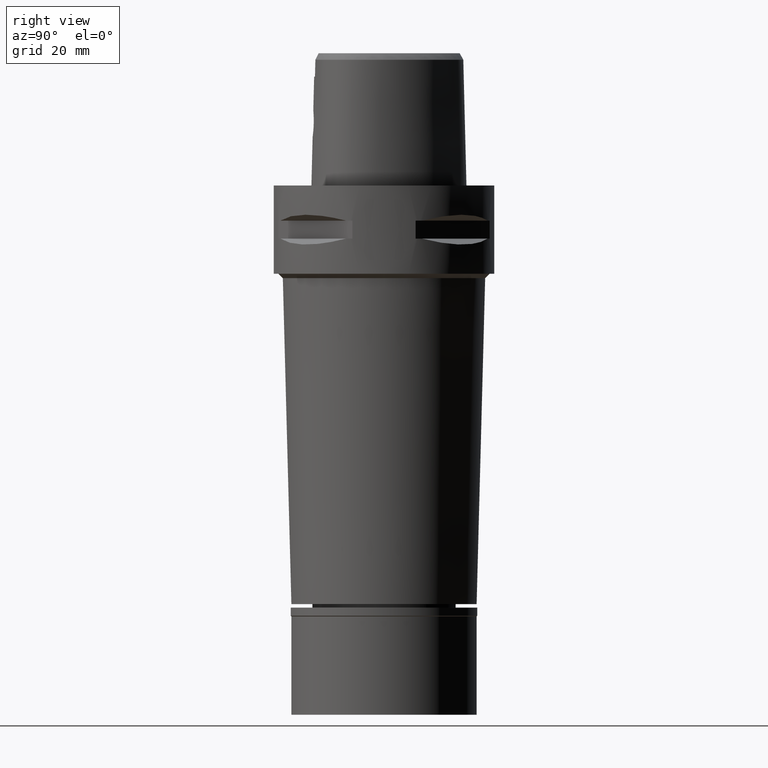
[diagram: clean part render]
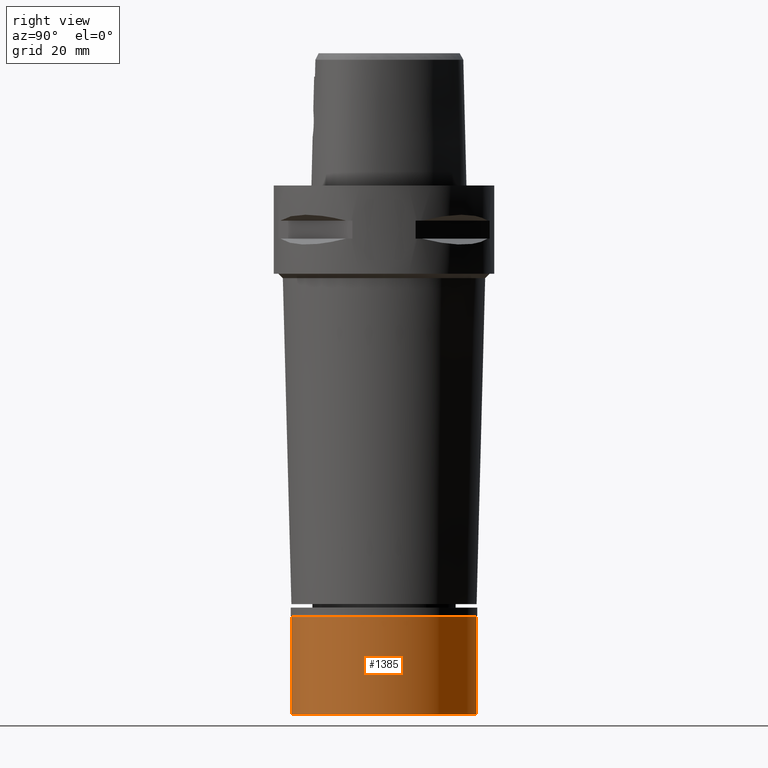
[diagram: same view with one face highlighted and labeled with its STEP entity id]
A machine part, right view. The second image highlights one B-rep face of the part: STEP entity #1385.
In plain terms, the highlighted cylindrical surface (partial cylindrical patch) has radius 21 mm, axis along (0, 0, -1).
Its self-contained STEP definition (entity closure, byte-faithful):
#637 = VERTEX_POINT ( 'NONE', #2983 ) ;
#659 = VERTEX_POINT ( 'NONE', #4084 ) ;
#748 = FACE_OUTER_BOUND ( 'NONE', #3502, .T. ) ;
#1007 = LINE ( 'NONE', #3986, #1406 ) ;
#1114 = CARTESIAN_POINT ( 'NONE',  ( 0.0000000000000000000, -21.00000000000000000, -2.000000000000000000 ) ) ;
#1198 = DIRECTION ( 'NONE',  ( 0.0000000000000000000, 0.0000000000000000000, 1.000000000000000000 ) ) ;
#1262 = AXIS2_PLACEMENT_3D ( 'NONE', #3374, #4065, #3744 ) ;
#1385 = ADVANCED_FACE ( 'NONE', ( #748 ), #2238, .T. ) ;
#1406 = VECTOR ( 'NONE', #3625, 1000.000000000000000 ) ;
#1466 = CIRCLE ( 'NONE', #2080, 21.00000000000000000 ) ;
#1506 = DIRECTION ( 'NONE',  ( 0.0000000000000000000, -1.000000000000000000, 0.0000000000000000000 ) ) ;
#1662 = ORIENTED_EDGE ( 'NONE', *, *, #3331, .T. ) ;
#1829 = CARTESIAN_POINT ( 'NONE',  ( 0.0000000000000000000, 0.0000000000000000000, 0.0000000000000000000 ) ) ;
#1842 = LINE ( 'NONE', #1114, #2359 ) ;
#2031 = ORIENTED_EDGE ( 'NONE', *, *, #2575, .T. ) ;
#2080 = AXIS2_PLACEMENT_3D ( 'NONE', #2693, #1198, #3117 ) ;
#2163 = ORIENTED_EDGE ( 'NONE', *, *, #3332, .T. ) ;
#2238 = CYLINDRICAL_SURFACE ( 'NONE', #3018, 21.00000000000000000 ) ;
#2359 = VECTOR ( 'NONE', #4122, 1000.000000000000000 ) ;
#2575 = EDGE_CURVE ( 'NONE', #637, #3141, #1466, .T. ) ;
#2693 = CARTESIAN_POINT ( 'NONE',  ( 0.0000000000000000000, 0.0000000000000000000, -24.29999999999999716 ) ) ;
#2983 = CARTESIAN_POINT ( 'NONE',  ( 0.0000000000000000000, -21.00000000000000000, -24.29999999999999716 ) ) ;
#3018 = AXIS2_PLACEMENT_3D ( 'NONE', #1829, #4095, #1506 ) ;
#3117 = DIRECTION ( 'NONE',  ( 0.0000000000000000000, -1.000000000000000000, 0.0000000000000000000 ) ) ;
#3141 = VERTEX_POINT ( 'NONE', #4409 ) ;
#3331 = EDGE_CURVE ( 'NONE', #659, #637, #1842, .T. ) ;
#3332 = EDGE_CURVE ( 'NONE', #4028, #659, #4406, .T. ) ;
#3374 = CARTESIAN_POINT ( 'NONE',  ( 0.0000000000000000000, 0.0000000000000000000, -2.000000000000000000 ) ) ;
#3502 = EDGE_LOOP ( 'NONE', ( #2163, #1662, #2031, #4220 ) ) ;
#3625 = DIRECTION ( 'NONE',  ( 0.0000000000000000000, 0.0000000000000000000, -1.000000000000000000 ) ) ;
#3744 = DIRECTION ( 'NONE',  ( 0.0000000000000000000, 1.000000000000000000, 0.0000000000000000000 ) ) ;
#3986 = CARTESIAN_POINT ( 'NONE',  ( 0.0000000000000000000, 21.00000000000000000, -2.000000000000000000 ) ) ;
#4028 = VERTEX_POINT ( 'NONE', #4653 ) ;
#4065 = DIRECTION ( 'NONE',  ( 0.0000000000000000000, 0.0000000000000000000, -1.000000000000000000 ) ) ;
#4084 = CARTESIAN_POINT ( 'NONE',  ( 0.0000000000000000000, -21.00000000000000000, -2.000000000000000000 ) ) ;
#4095 = DIRECTION ( 'NONE',  ( 0.0000000000000000000, 0.0000000000000000000, -1.000000000000000000 ) ) ;
#4122 = DIRECTION ( 'NONE',  ( 0.0000000000000000000, 0.0000000000000000000, -1.000000000000000000 ) ) ;
#4220 = ORIENTED_EDGE ( 'NONE', *, *, #4246, .F. ) ;
#4246 = EDGE_CURVE ( 'NONE', #4028, #3141, #1007, .T. ) ;
#4406 = CIRCLE ( 'NONE', #1262, 21.00000000000000000 ) ;
#4409 = CARTESIAN_POINT ( 'NONE',  ( 0.0000000000000000000, 21.00000000000000000, -24.29999999999999716 ) ) ;
#4653 = CARTESIAN_POINT ( 'NONE',  ( 0.0000000000000000000, 21.00000000000000000, -2.000000000000000000 ) ) ;